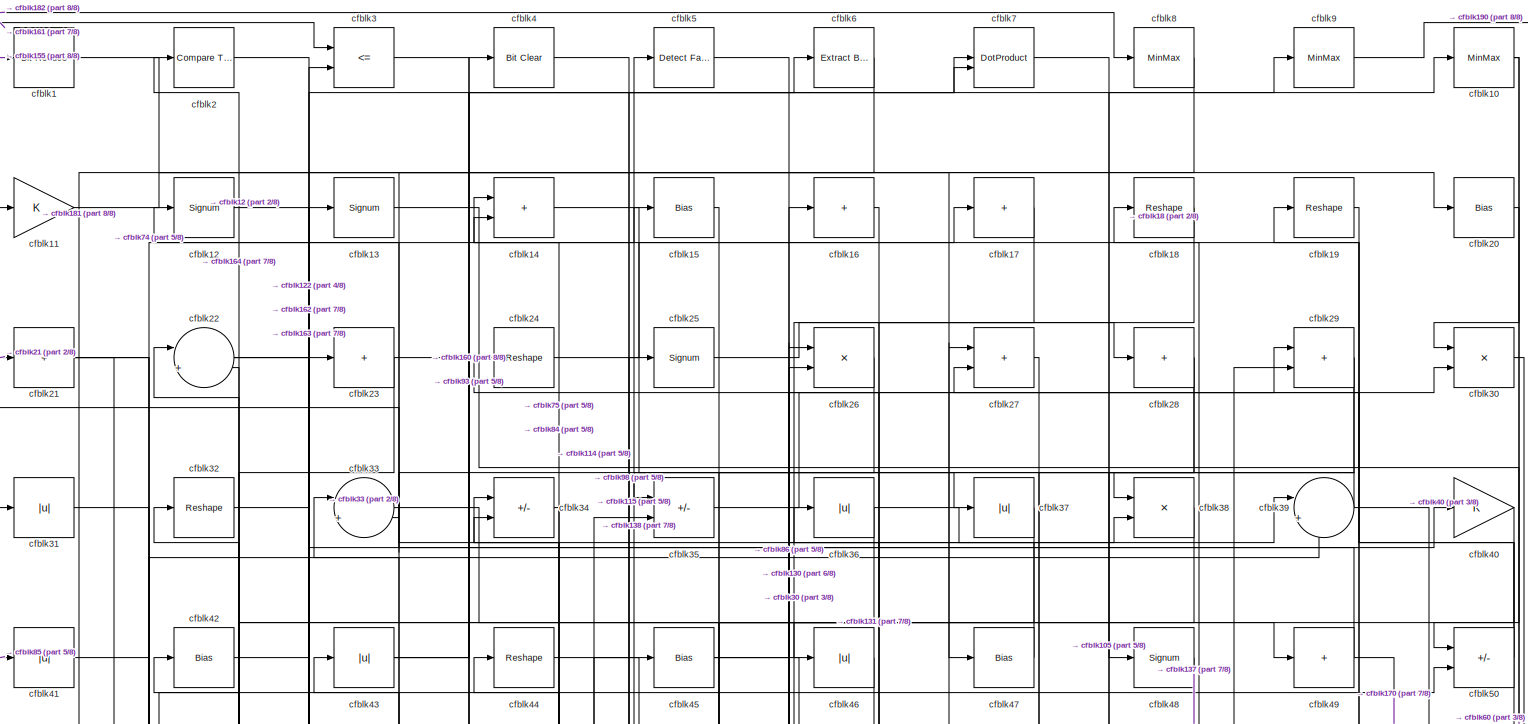
[diagram: root canvas - part 1/8, full width, top band]
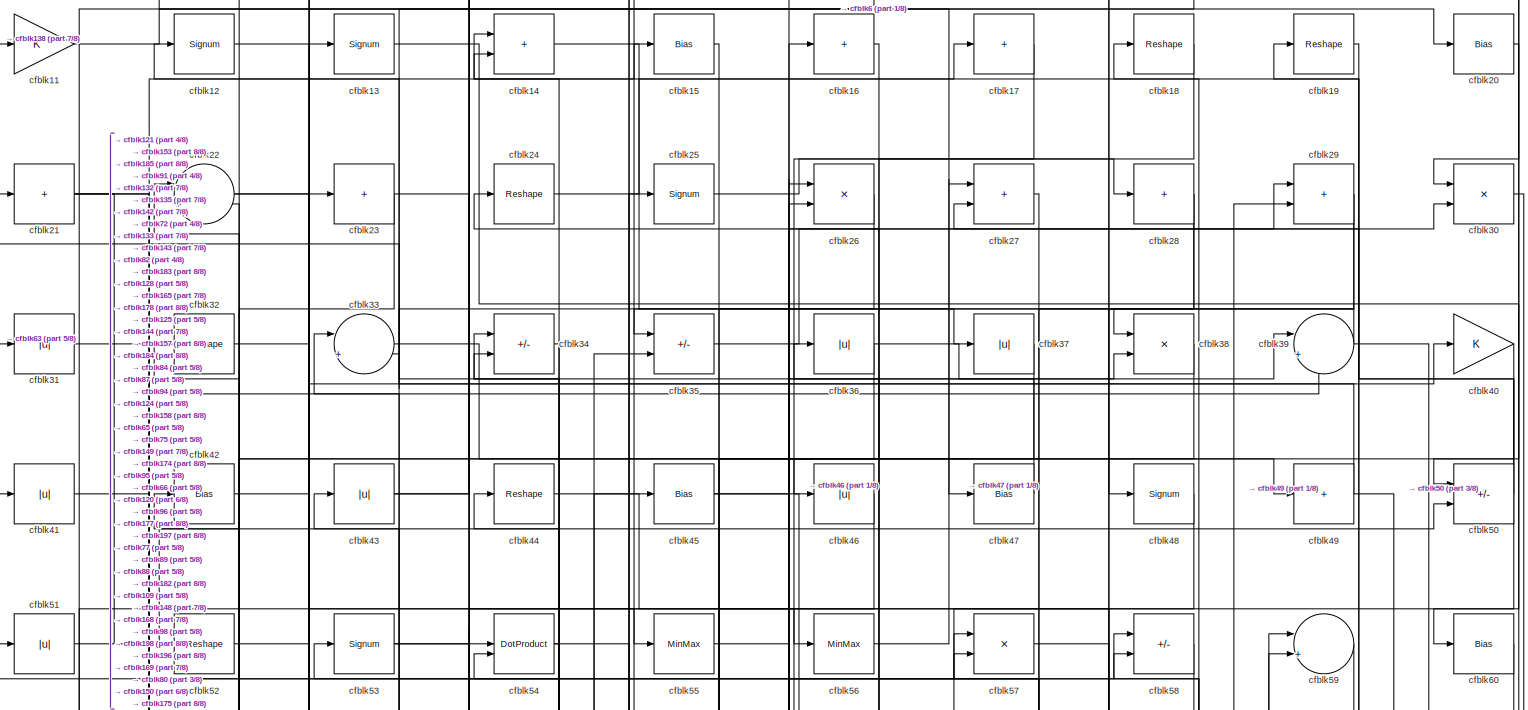
[diagram: root canvas - part 2/8, full width, top band]
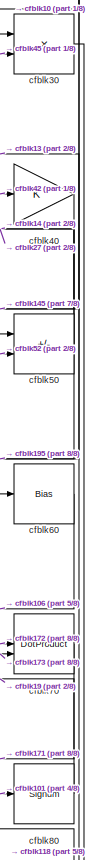
[diagram: root canvas - part 3/8, top right region]
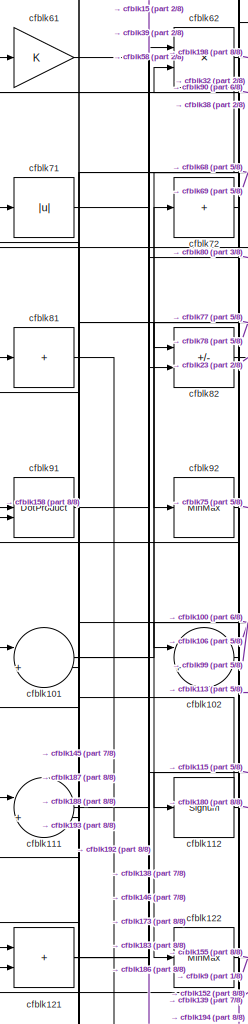
[diagram: root canvas - part 4/8, middle left region]
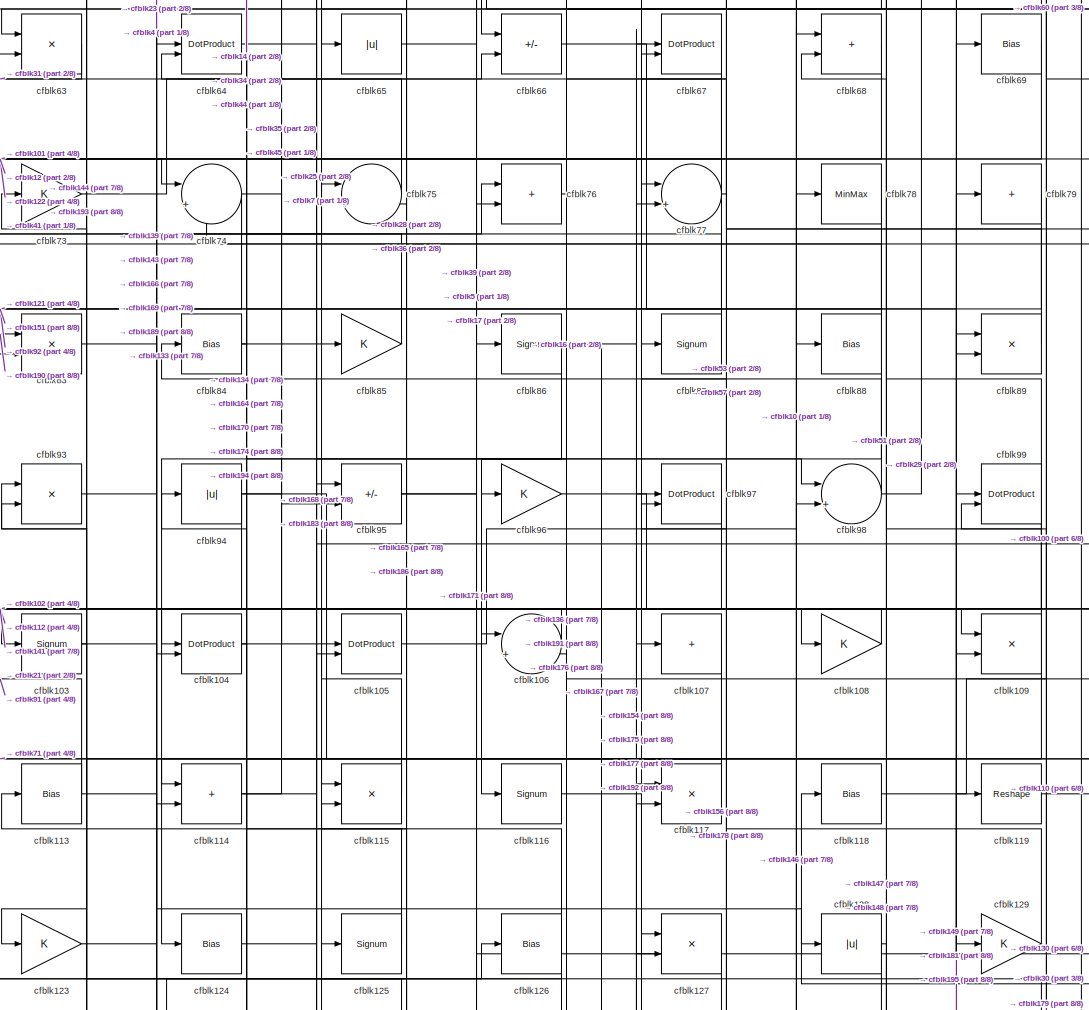
[diagram: root canvas - part 5/8, central region]
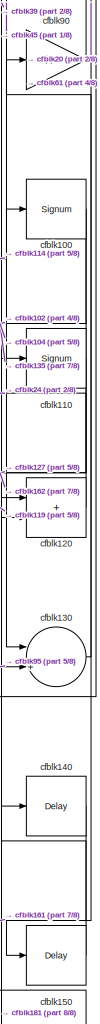
[diagram: root canvas - part 6/8, middle right region]
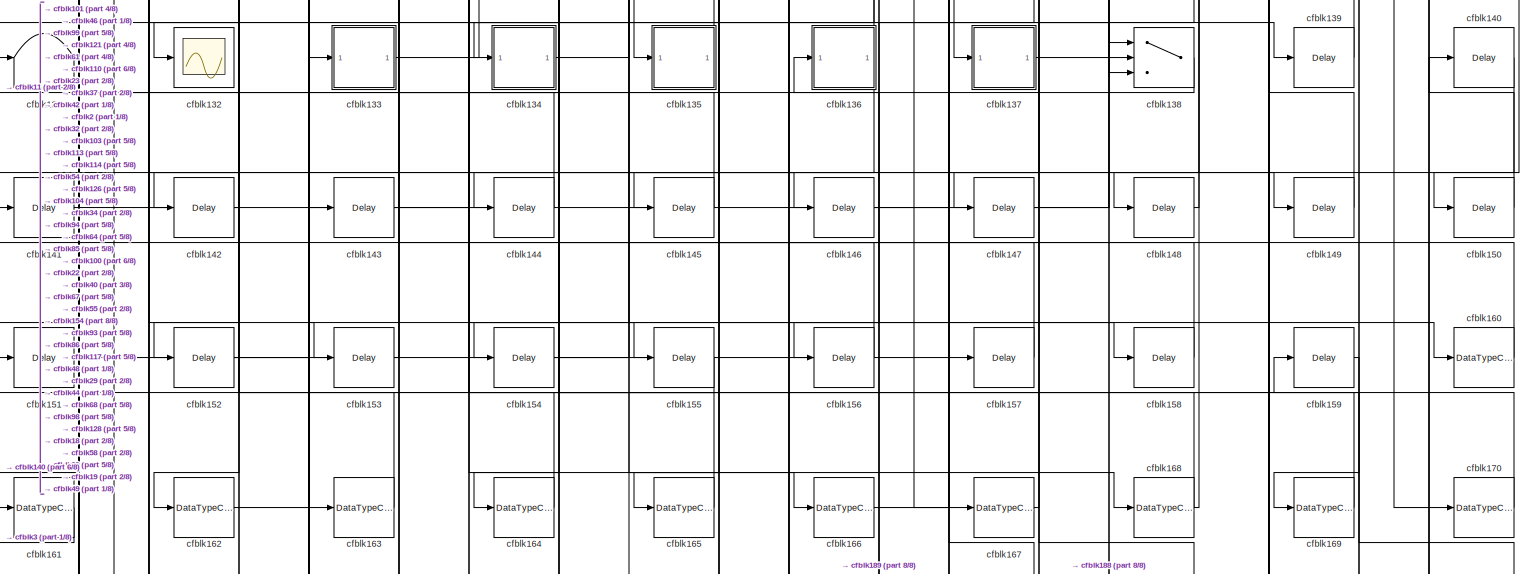
[diagram: root canvas - part 7/8, full width, bottom band]
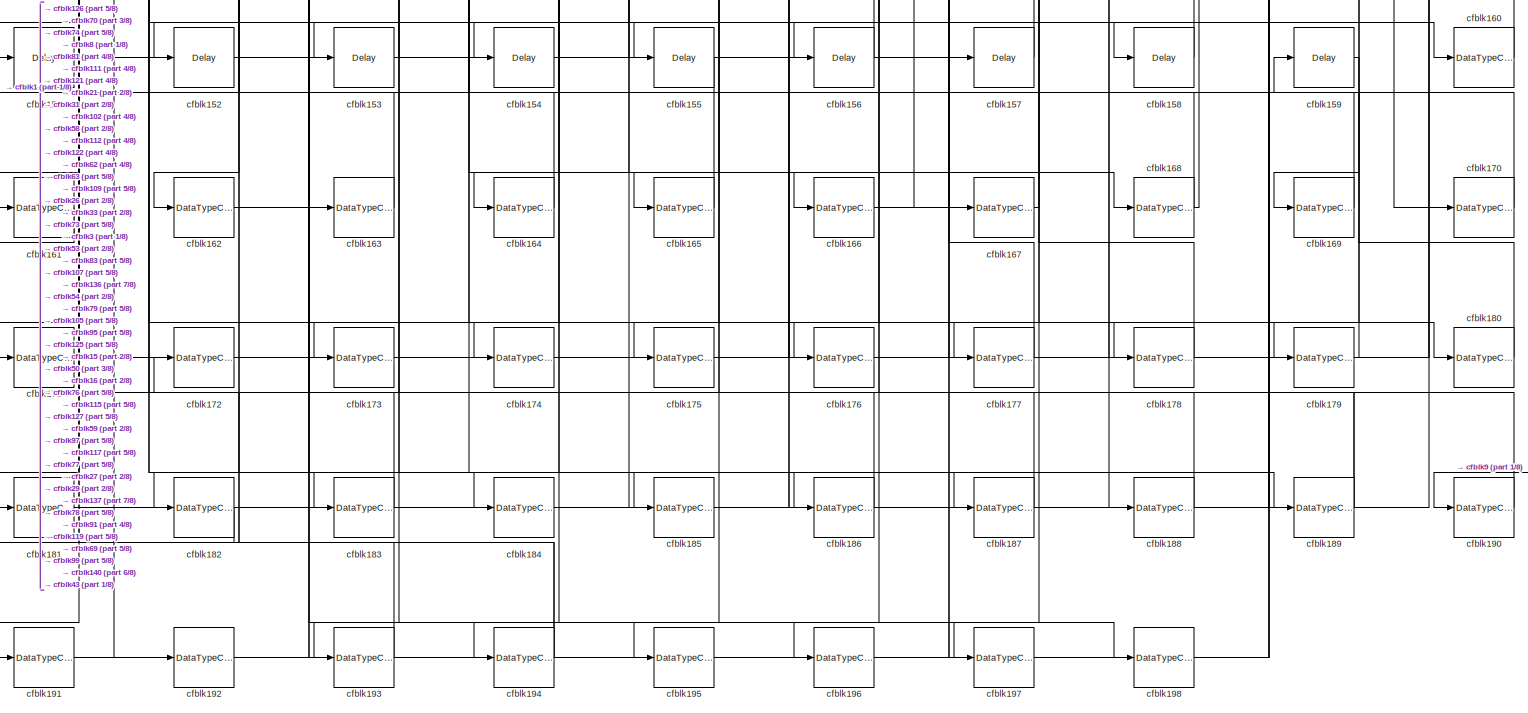
[diagram: root canvas - part 8/8, full width, bottom band]
MODEL slx_d9b208d0727f
KIND model
CONFIG AbsTol = auto
CONFIG EnableMultiTasking = off
CONFIG FixedStep = auto
CONFIG MaxStep = auto
CONFIG MinStep = auto
CONFIG RelTol = 1e-3
CONFIG SampleTimeConstraint = Unconstrained
CONFIG SolverName = VariableStepAuto
CONFIG StartTime = 0.0
CONFIG StopTime = 10.0
BLOCK [Reference] cfblk1  REF=hdlsllib/Logic and Bit
Operations/Bit Reduce
  SourceBlock = hdlsllib/Logic and Bit\nOperations/Bit Reduce
  SourceType = Bit Reduce
BLOCK [MinMax] cfblk10
BLOCK [Signum] cfblk100
BLOCK [Sum] cfblk101
  Inputs = |++
BLOCK [Sum] cfblk102
  Inputs = |++
BLOCK [Signum] cfblk103
BLOCK [DotProduct] cfblk104
  OutDataTypeStr = Inherit: Inherit via internal rule
BLOCK [DotProduct] cfblk105
  OutDataTypeStr = Inherit: Inherit via internal rule
BLOCK [Sum] cfblk106
  Inputs = |++
BLOCK [Sum] cfblk107
  IconShape = rectangular
  Inputs = +
BLOCK [Gain] cfblk108
BLOCK [Product] cfblk109
  Inputs = */
  RndMeth = Zero
  SaturateOnIntegerOverflow = on
BLOCK [Gain] cfblk11
BLOCK [Signum] cfblk110
BLOCK [Sum] cfblk111
  Inputs = |++
BLOCK [Signum] cfblk112
BLOCK [Bias] cfblk113
  Bias = 0.0
  SaturateOnIntegerOverflow = off
BLOCK [Sum] cfblk114
  IconShape = rectangular
BLOCK [Product] cfblk115
  Inputs = */
  RndMeth = Zero
  SaturateOnIntegerOverflow = on
BLOCK [Signum] cfblk116
BLOCK [Product] cfblk117
  Inputs = */
  RndMeth = Zero
  SaturateOnIntegerOverflow = on
BLOCK [Bias] cfblk118
  Bias = 0.0
  SaturateOnIntegerOverflow = off
BLOCK [Reshape] cfblk119
BLOCK [Signum] cfblk12
BLOCK [Sum] cfblk120
  IconShape = rectangular
BLOCK [Sum] cfblk121
  IconShape = rectangular
BLOCK [MinMax] cfblk122
BLOCK [Gain] cfblk123
BLOCK [Bias] cfblk124
  Bias = 0.0
  SaturateOnIntegerOverflow = off
BLOCK [Signum] cfblk125
BLOCK [Bias] cfblk126
  Bias = 0.0
  SaturateOnIntegerOverflow = off
BLOCK [Product] cfblk127
  Inputs = */
  RndMeth = Zero
  SaturateOnIntegerOverflow = on
BLOCK [Abs] cfblk128
  SaturateOnIntegerOverflow = off
BLOCK [Gain] cfblk129
BLOCK [Signum] cfblk13
BLOCK [Sum] cfblk130
  Inputs = |++
BLOCK [Terminator] cfblk131
BLOCK [Scope] cfblk132
  Floating = off
  NumInputPorts = 1
  ScopeSpecificationString = Simulink.scopes.TimeScopeBlockCfg('CurrentConfiguration', extmgr.ConfigurationSet(extmgr.Configuration('Core','General UI',true),extmgr.Configuration('Core','Source UI',true),extmgr.Configuration('Sources','WiredSimulink',true,'DataLoggingVariableName','ScopeData2','DataLoggingSaveFormat','Array','DataLoggingLimitDataPoints',true,'DataLoggingDecimation','1'),extmgr.Configuration('Visuals','Time Do...<+868ch>
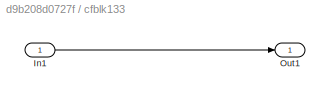
BLOCK [SubSystem] cfblk133
  LibrarySourceBlock = hdlsllib/Ports &\nSubsystems/Subsystem
BLOCK [Inport] cfblk133/In1
BLOCK [Outport] cfblk133/Out1
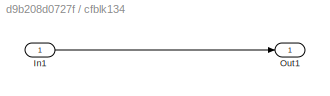
BLOCK [SubSystem] cfblk134
  LibrarySourceBlock = hdlsllib/Ports &\nSubsystems/Subsystem
BLOCK [Inport] cfblk134/In1
BLOCK [Outport] cfblk134/Out1
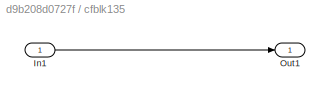
BLOCK [SubSystem] cfblk135
  LibrarySourceBlock = hdlsllib/Ports &\nSubsystems/Subsystem
BLOCK [Inport] cfblk135/In1
BLOCK [Outport] cfblk135/Out1
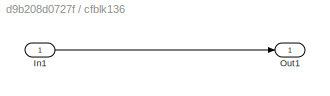
BLOCK [SubSystem] cfblk136
  LibrarySourceBlock = hdlsllib/Ports &\nSubsystems/Subsystem
BLOCK [Inport] cfblk136/In1
BLOCK [Outport] cfblk136/Out1
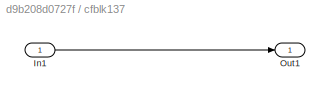
BLOCK [SubSystem] cfblk137
  LibrarySourceBlock = hdlsllib/Ports &\nSubsystems/Subsystem
BLOCK [Inport] cfblk137/In1
BLOCK [Outport] cfblk137/Out1
BLOCK [Switch] cfblk138
  InputSameDT = off
  SaturateOnIntegerOverflow = off
BLOCK [Delay] cfblk139
  InputPortMap = u0
  SampleTime = 1
BLOCK [Sum] cfblk14
  IconShape = rectangular
BLOCK [Delay] cfblk140
  InputPortMap = u0
  SampleTime = 1
BLOCK [Delay] cfblk141
  InputPortMap = u0
  SampleTime = 1
BLOCK [Delay] cfblk142
  InputPortMap = u0
  SampleTime = 1
BLOCK [Delay] cfblk143
  InputPortMap = u0
  SampleTime = 1
BLOCK [Delay] cfblk144
  InputPortMap = u0
  SampleTime = 1
BLOCK [Delay] cfblk145
  InputPortMap = u0
  SampleTime = 1
BLOCK [Delay] cfblk146
  InputPortMap = u0
  SampleTime = 1
BLOCK [Delay] cfblk147
  InputPortMap = u0
  SampleTime = 1
BLOCK [Delay] cfblk148
  InputPortMap = u0
  SampleTime = 1
BLOCK [Delay] cfblk149
  InputPortMap = u0
  SampleTime = 1
BLOCK [Bias] cfblk15
  Bias = 0.0
  SaturateOnIntegerOverflow = off
BLOCK [Delay] cfblk150
  InputPortMap = u0
  SampleTime = 1
BLOCK [Delay] cfblk151
  InputPortMap = u0
  SampleTime = 1
BLOCK [Delay] cfblk152
  InputPortMap = u0
  SampleTime = 1
BLOCK [Delay] cfblk153
  InputPortMap = u0
  SampleTime = 1
BLOCK [Delay] cfblk154
  InputPortMap = u0
  SampleTime = 1
BLOCK [Delay] cfblk155
  InputPortMap = u0
  SampleTime = 1
BLOCK [Delay] cfblk156
  InputPortMap = u0
  SampleTime = 1
BLOCK [Delay] cfblk157
  InputPortMap = u0
  SampleTime = 1
BLOCK [Delay] cfblk158
  InputPortMap = u0
  SampleTime = 1
BLOCK [Delay] cfblk159
  InputPortMap = u0
  SampleTime = 1
BLOCK [Sum] cfblk16
  IconShape = rectangular
  Inputs = +
BLOCK [DataTypeConversion] cfblk160
  OutDataTypeStr = uint8
  RndMeth = Floor
  SaturateOnIntegerOverflow = off
BLOCK [DataTypeConversion] cfblk161
  OutDataTypeStr = uint8
  RndMeth = Floor
  SaturateOnIntegerOverflow = off
BLOCK [DataTypeConversion] cfblk162
  OutDataTypeStr = uint8
  RndMeth = Floor
  SaturateOnIntegerOverflow = off
BLOCK [DataTypeConversion] cfblk163
  OutDataTypeStr = uint8
  RndMeth = Floor
  SaturateOnIntegerOverflow = off
BLOCK [DataTypeConversion] cfblk164
  OutDataTypeStr = uint8
  RndMeth = Floor
  SaturateOnIntegerOverflow = off
BLOCK [DataTypeConversion] cfblk165
  OutDataTypeStr = uint8
  RndMeth = Floor
  SaturateOnIntegerOverflow = off
BLOCK [DataTypeConversion] cfblk166
  OutDataTypeStr = uint8
  RndMeth = Floor
  SaturateOnIntegerOverflow = off
BLOCK [DataTypeConversion] cfblk167
  OutDataTypeStr = uint8
  RndMeth = Floor
  SaturateOnIntegerOverflow = off
BLOCK [DataTypeConversion] cfblk168
  RndMeth = Floor
  SaturateOnIntegerOverflow = off
BLOCK [DataTypeConversion] cfblk169
  OutDataTypeStr = uint8
  RndMeth = Floor
  SaturateOnIntegerOverflow = off
BLOCK [Sum] cfblk17
  IconShape = rectangular
  Inputs = +
BLOCK [DataTypeConversion] cfblk170
  OutDataTypeStr = uint8
  RndMeth = Floor
  SaturateOnIntegerOverflow = off
BLOCK [DataTypeConversion] cfblk171
  OutDataTypeStr = uint8
  RndMeth = Floor
  SaturateOnIntegerOverflow = off
BLOCK [DataTypeConversion] cfblk172
  OutDataTypeStr = uint8
  RndMeth = Floor
  SaturateOnIntegerOverflow = off
BLOCK [DataTypeConversion] cfblk173
  OutDataTypeStr = uint8
  RndMeth = Floor
  SaturateOnIntegerOverflow = off
BLOCK [DataTypeConversion] cfblk174
  RndMeth = Floor
  SaturateOnIntegerOverflow = off
BLOCK [DataTypeConversion] cfblk175
  OutDataTypeStr = uint8
  RndMeth = Floor
  SaturateOnIntegerOverflow = off
BLOCK [DataTypeConversion] cfblk176
  OutDataTypeStr = uint8
  RndMeth = Floor
  SaturateOnIntegerOverflow = off
BLOCK [DataTypeConversion] cfblk177
  OutDataTypeStr = uint8
  RndMeth = Floor
  SaturateOnIntegerOverflow = off
BLOCK [DataTypeConversion] cfblk178
  OutDataTypeStr = uint8
  RndMeth = Floor
  SaturateOnIntegerOverflow = off
BLOCK [DataTypeConversion] cfblk179
  OutDataTypeStr = uint8
  RndMeth = Floor
  SaturateOnIntegerOverflow = off
BLOCK [Reshape] cfblk18
BLOCK [DataTypeConversion] cfblk180
  OutDataTypeStr = uint8
  RndMeth = Floor
  SaturateOnIntegerOverflow = off
BLOCK [DataTypeConversion] cfblk181
  RndMeth = Floor
  SaturateOnIntegerOverflow = off
BLOCK [DataTypeConversion] cfblk182
  OutDataTypeStr = uint8
  RndMeth = Floor
  SaturateOnIntegerOverflow = off
BLOCK [DataTypeConversion] cfblk183
  RndMeth = Floor
  SaturateOnIntegerOverflow = off
BLOCK [DataTypeConversion] cfblk184
  OutDataTypeStr = uint8
  RndMeth = Floor
  SaturateOnIntegerOverflow = off
BLOCK [DataTypeConversion] cfblk185
  OutDataTypeStr = uint8
  RndMeth = Floor
  SaturateOnIntegerOverflow = off
BLOCK [DataTypeConversion] cfblk186
  RndMeth = Floor
  SaturateOnIntegerOverflow = off
BLOCK [DataTypeConversion] cfblk187
  OutDataTypeStr = uint8
  RndMeth = Floor
  SaturateOnIntegerOverflow = off
BLOCK [DataTypeConversion] cfblk188
  OutDataTypeStr = uint8
  RndMeth = Floor
  SaturateOnIntegerOverflow = off
BLOCK [DataTypeConversion] cfblk189
  RndMeth = Floor
  SaturateOnIntegerOverflow = off
BLOCK [Reshape] cfblk19
BLOCK [DataTypeConversion] cfblk190
  OutDataTypeStr = uint8
  RndMeth = Floor
  SaturateOnIntegerOverflow = off
BLOCK [DataTypeConversion] cfblk191
  OutDataTypeStr = uint8
  RndMeth = Floor
  SaturateOnIntegerOverflow = off
BLOCK [DataTypeConversion] cfblk192
  RndMeth = Floor
  SaturateOnIntegerOverflow = off
BLOCK [DataTypeConversion] cfblk193
  OutDataTypeStr = uint8
  RndMeth = Floor
  SaturateOnIntegerOverflow = off
BLOCK [DataTypeConversion] cfblk194
  RndMeth = Floor
  SaturateOnIntegerOverflow = off
BLOCK [DataTypeConversion] cfblk195
  OutDataTypeStr = uint8
  RndMeth = Floor
  SaturateOnIntegerOverflow = off
BLOCK [DataTypeConversion] cfblk196
  OutDataTypeStr = uint8
  RndMeth = Floor
  SaturateOnIntegerOverflow = off
BLOCK [DataTypeConversion] cfblk197
  OutDataTypeStr = uint8
  RndMeth = Floor
  SaturateOnIntegerOverflow = off
BLOCK [DataTypeConversion] cfblk198
  OutDataTypeStr = uint8
  RndMeth = Floor
  SaturateOnIntegerOverflow = off
BLOCK [Reference] cfblk2  REF=hdlsllib/Logic and Bit
Operations/Compare
To Constant
  SourceBlock = hdlsllib/Logic and Bit\nOperations/Compare\nTo Constant
  SourceType = Compare To Constant
BLOCK [Bias] cfblk20
  Bias = 0.0
  SaturateOnIntegerOverflow = off
BLOCK [Sum] cfblk21
  IconShape = rectangular
  Inputs = +
BLOCK [Sum] cfblk22
  Inputs = |++
BLOCK [Sum] cfblk23
  IconShape = rectangular
  Inputs = +
BLOCK [Reshape] cfblk24
BLOCK [Signum] cfblk25
BLOCK [Product] cfblk26
  Inputs = */
  RndMeth = Zero
  SaturateOnIntegerOverflow = on
BLOCK [Sum] cfblk27
  IconShape = rectangular
BLOCK [Sum] cfblk28
  IconShape = rectangular
  Inputs = +
BLOCK [Sum] cfblk29
  IconShape = rectangular
BLOCK [RelationalOperator] cfblk3
  InputSameDT = off
  Operator = <=
  OutDataTypeStr = boolean
BLOCK [Product] cfblk30
  Inputs = */
  RndMeth = Zero
  SaturateOnIntegerOverflow = on
BLOCK [Abs] cfblk31
  SaturateOnIntegerOverflow = off
BLOCK [Reshape] cfblk32
BLOCK [Sum] cfblk33
  Inputs = |++
BLOCK [Sum] cfblk34
  IconShape = rectangular
  Inputs = +-
BLOCK [Sum] cfblk35
  IconShape = rectangular
  Inputs = +-
BLOCK [Abs] cfblk36
  SaturateOnIntegerOverflow = off
BLOCK [Abs] cfblk37
  SaturateOnIntegerOverflow = off
BLOCK [Product] cfblk38
  Inputs = */
  RndMeth = Zero
  SaturateOnIntegerOverflow = on
BLOCK [Sum] cfblk39
  Inputs = |++
BLOCK [Reference] cfblk4  REF=simulink/Logic and Bit
Operations/Bit Clear
  LibrarySourceBlock = hdlsllib/Logic and Bit\nOperations/Bit Clear
  SourceBlock = simulink/Logic and Bit\nOperations/Bit Clear
  SourceType = Bit Clear
BLOCK [Gain] cfblk40
BLOCK [Abs] cfblk41
  SaturateOnIntegerOverflow = off
BLOCK [Bias] cfblk42
  Bias = 0.0
  SaturateOnIntegerOverflow = off
BLOCK [Abs] cfblk43
  SaturateOnIntegerOverflow = off
BLOCK [Reshape] cfblk44
BLOCK [Bias] cfblk45
  Bias = 0.0
  SaturateOnIntegerOverflow = off
BLOCK [Abs] cfblk46
  SaturateOnIntegerOverflow = off
BLOCK [Bias] cfblk47
  Bias = 0.0
  SaturateOnIntegerOverflow = off
BLOCK [Signum] cfblk48
BLOCK [Sum] cfblk49
  IconShape = rectangular
  Inputs = +
BLOCK [Reference] cfblk5  REF=hdlsllib/Logic and Bit
Operations/Detect Fall
Negative
  SourceBlock = hdlsllib/Logic and Bit\nOperations/Detect Fall\nNegative
  SourceType = Detect Fall Negative
BLOCK [Sum] cfblk50
  IconShape = rectangular
  Inputs = +-
BLOCK [Abs] cfblk51
  SaturateOnIntegerOverflow = off
BLOCK [Reshape] cfblk52
BLOCK [Signum] cfblk53
BLOCK [DotProduct] cfblk54
  OutDataTypeStr = Inherit: Inherit via internal rule
BLOCK [MinMax] cfblk55
BLOCK [MinMax] cfblk56
BLOCK [Product] cfblk57
  Inputs = */
  RndMeth = Zero
  SaturateOnIntegerOverflow = on
BLOCK [Sum] cfblk58
  IconShape = rectangular
  Inputs = +-
BLOCK [Sum] cfblk59
  Inputs = |++
BLOCK [Reference] cfblk6  REF=simulink/Logic and Bit
Operations/Extract Bits
  LibrarySourceBlock = hdlsllib/Logic and Bit\nOperations/Extract Bits
  SourceBlock = simulink/Logic and Bit\nOperations/Extract Bits
  SourceType = Extract Bits
BLOCK [Bias] cfblk60
  Bias = 0.0
  SaturateOnIntegerOverflow = off
BLOCK [Gain] cfblk61
BLOCK [Product] cfblk62
  Inputs = */
  RndMeth = Zero
  SaturateOnIntegerOverflow = on
BLOCK [Product] cfblk63
  Inputs = */
  RndMeth = Zero
  SaturateOnIntegerOverflow = on
BLOCK [DotProduct] cfblk64
  OutDataTypeStr = Inherit: Inherit via internal rule
BLOCK [Abs] cfblk65
  SaturateOnIntegerOverflow = off
BLOCK [Sum] cfblk66
  IconShape = rectangular
  Inputs = +-
BLOCK [DotProduct] cfblk67
  OutDataTypeStr = Inherit: Inherit via internal rule
BLOCK [Sum] cfblk68
  IconShape = rectangular
BLOCK [Bias] cfblk69
  Bias = 0.0
  SaturateOnIntegerOverflow = off
BLOCK [DotProduct] cfblk7
  OutDataTypeStr = Inherit: Inherit via internal rule
BLOCK [DotProduct] cfblk70
  OutDataTypeStr = Inherit: Inherit via internal rule
BLOCK [Abs] cfblk71
  SaturateOnIntegerOverflow = off
BLOCK [Sum] cfblk72
  IconShape = rectangular
  Inputs = +
BLOCK [Gain] cfblk73
BLOCK [Sum] cfblk74
  Inputs = |++
BLOCK [Sum] cfblk75
  Inputs = |++
BLOCK [Sum] cfblk76
  IconShape = rectangular
BLOCK [Sum] cfblk77
  Inputs = |++
BLOCK [MinMax] cfblk78
BLOCK [Sum] cfblk79
  IconShape = rectangular
  Inputs = +
BLOCK [MinMax] cfblk8
BLOCK [Signum] cfblk80
BLOCK [Sum] cfblk81
  IconShape = rectangular
  Inputs = +
BLOCK [Sum] cfblk82
  IconShape = rectangular
  Inputs = +-
BLOCK [Product] cfblk83
  Inputs = */
  RndMeth = Zero
  SaturateOnIntegerOverflow = on
BLOCK [Bias] cfblk84
  Bias = 0.0
  SaturateOnIntegerOverflow = off
BLOCK [Gain] cfblk85
BLOCK [Signum] cfblk86
BLOCK [Signum] cfblk87
BLOCK [Bias] cfblk88
  Bias = 0.0
  SaturateOnIntegerOverflow = off
BLOCK [Product] cfblk89
  Inputs = */
  RndMeth = Zero
  SaturateOnIntegerOverflow = on
BLOCK [MinMax] cfblk9
BLOCK [Gain] cfblk90
BLOCK [DotProduct] cfblk91
  OutDataTypeStr = Inherit: Inherit via internal rule
BLOCK [MinMax] cfblk92
BLOCK [Product] cfblk93
  Inputs = */
  RndMeth = Zero
  SaturateOnIntegerOverflow = on
BLOCK [Abs] cfblk94
  SaturateOnIntegerOverflow = off
BLOCK [Sum] cfblk95
  IconShape = rectangular
  Inputs = +-
BLOCK [Gain] cfblk96
BLOCK [DotProduct] cfblk97
  OutDataTypeStr = Inherit: Inherit via internal rule
BLOCK [Sum] cfblk98
  Inputs = |++
BLOCK [DotProduct] cfblk99
  OutDataTypeStr = Inherit: Inherit via internal rule
NET cfblk100:1 -> cfblk102:2, cfblk135:1
NET cfblk101:1 -> cfblk72:1, cfblk80:1
LINE cfblk102:1 -> cfblk152:1
NET cfblk103:1 -> cfblk123:1, cfblk166:1
NET cfblk104:1 -> cfblk164:1, cfblk95:2
LINE cfblk105:1 -> cfblk10:1
LINE cfblk106:1 -> cfblk102:1
LINE cfblk107:1 -> cfblk174:1
LINE cfblk108:1 -> cfblk103:1
NET cfblk109:1 -> cfblk193:1, cfblk51:1
NET cfblk10:1 -> cfblk30:1, cfblk60:1
NET cfblk110:1 -> cfblk104:1, cfblk127:2, cfblk162:1
LINE cfblk111:1 -> cfblk186:1
NET cfblk112:1 -> cfblk180:1, cfblk71:1
NET cfblk113:1 -> cfblk139:1, cfblk91:2
NET cfblk114:1 -> cfblk100:1, cfblk45:1
LINE cfblk115:1 -> cfblk5:1
LINE cfblk116:1 -> cfblk127:1
LINE cfblk117:1 -> cfblk114:1
LINE cfblk118:1 -> cfblk63:1
LINE cfblk119:1 -> cfblk110:1
LINE cfblk11:1 -> cfblk20:1
LINE cfblk120:1 -> cfblk24:1
NET cfblk121:1 -> cfblk138:2, cfblk15:1, cfblk173:1, cfblk39:2
NET cfblk122:1 -> cfblk155:1, cfblk9:1
LINE cfblk123:1 -> cfblk76:1
LINE cfblk124:1 -> cfblk25:1
LINE cfblk125:1 -> cfblk34:1
NET cfblk126:1 -> cfblk113:1, cfblk191:1
LINE cfblk127:1 -> cfblk156:1
NET cfblk128:1 -> cfblk147:1, cfblk148:1
LINE cfblk129:1 -> cfblk87:1
LINE cfblk12:1 -> cfblk77:1
LINE cfblk130:1 -> cfblk90:1
LINE cfblk133/In1:1 -> cfblk133/Out1:1
LINE cfblk133:1 -> cfblk126:1
LINE cfblk134/In1:1 -> cfblk134/Out1:1
LINE cfblk134:1 -> cfblk85:1
LINE cfblk135/In1:1 -> cfblk135/Out1:1
LINE cfblk135:1 -> cfblk22:1
LINE cfblk136/In1:1 -> cfblk136/Out1:1
NET cfblk136:1 -> cfblk154:1, cfblk93:1
LINE cfblk137/In1:1 -> cfblk137/Out1:1
LINE cfblk137:1 -> cfblk188:1
LINE cfblk138:1 -> cfblk11:1
LINE cfblk139:1 -> cfblk121:2
LINE cfblk13:1 -> cfblk50:1
LINE cfblk140:1 -> cfblk161:1
LINE cfblk141:1 -> cfblk117:2
LINE cfblk142:1 -> cfblk22:2
LINE cfblk143:1 -> cfblk114:2
LINE cfblk144:1 -> cfblk93:2
LINE cfblk145:1 -> cfblk101:1
LINE cfblk146:1 -> cfblk68:1
LINE cfblk147:1 -> cfblk98:2
LINE cfblk148:1 -> cfblk58:2
LINE cfblk149:1 -> cfblk89:1
LINE cfblk14:1 -> cfblk37:1
LINE cfblk150:1 -> cfblk120:1
LINE cfblk151:1 -> cfblk95:1
LINE cfblk152:1 -> cfblk187:1
LINE cfblk153:1 -> cfblk33:1
LINE cfblk154:1 -> cfblk77:2
LINE cfblk155:1 -> cfblk1:1
LINE cfblk156:1 -> cfblk115:2
LINE cfblk157:1 -> cfblk54:2
LINE cfblk158:1 -> cfblk91:1
LINE cfblk159:1 -> cfblk179:1
LINE cfblk15:1 -> cfblk175:1
LINE cfblk160:1 -> cfblk43:1
LINE cfblk161:1 -> cfblk3:1
LINE cfblk162:1 -> cfblk3:2
LINE cfblk163:1 -> cfblk42:1
LINE cfblk164:1 -> cfblk2:1
LINE cfblk165:1 -> cfblk54:1
LINE cfblk166:1 -> cfblk67:1
LINE cfblk167:1 -> cfblk67:2
NET cfblk168:1 -> cfblk18:1, cfblk94:1
LINE cfblk169:1 -> cfblk64:1
LINE cfblk16:1 -> cfblk96:1
LINE cfblk170:1 -> cfblk64:2
LINE cfblk171:1 -> cfblk76:2
LINE cfblk172:1 -> cfblk70:1
LINE cfblk173:1 -> cfblk70:2
NET cfblk174:1 -> cfblk119:1, cfblk16:1
LINE cfblk175:1 -> cfblk107:1
LINE cfblk176:1 -> cfblk78:1
LINE cfblk177:1 -> cfblk97:1
LINE cfblk178:1 -> cfblk97:2
LINE cfblk179:1 -> cfblk99:2
LINE cfblk17:1 -> cfblk66:1
LINE cfblk180:1 -> cfblk159:1
NET cfblk181:1 -> cfblk140:1, cfblk99:1
LINE cfblk182:1 -> cfblk8:1
NET cfblk183:1 -> cfblk105:2, cfblk62:1
LINE cfblk184:1 -> cfblk26:1
LINE cfblk185:1 -> cfblk26:2
NET cfblk186:1 -> cfblk125:1, cfblk69:1
LINE cfblk187:1 -> cfblk111:1
LINE cfblk188:1 -> cfblk111:2
NET cfblk189:1 -> cfblk136:1, cfblk73:1
LINE cfblk18:1 -> cfblk46:1
LINE cfblk190:1 -> cfblk83:1
LINE cfblk191:1 -> cfblk83:2
NET cfblk192:1 -> cfblk117:1, cfblk63:2
LINE cfblk193:1 -> cfblk81:1
NET cfblk194:1 -> cfblk172:1, cfblk62:2
LINE cfblk195:1 -> cfblk79:1
LINE cfblk196:1 -> cfblk157:1
LINE cfblk197:1 -> cfblk59:1
LINE cfblk198:1 -> cfblk59:2
LINE cfblk19:1 -> cfblk169:1
LINE cfblk1:1 -> cfblk47:1
LINE cfblk20:1 -> cfblk150:1
NET cfblk21:1 -> cfblk109:2, cfblk185:1, cfblk52:1
NET cfblk22:1 -> cfblk133:1, cfblk56:1
NET cfblk23:1 -> cfblk128:1, cfblk132:1
LINE cfblk24:1 -> cfblk17:1
LINE cfblk25:1 -> cfblk28:1
LINE cfblk26:1 -> cfblk183:1
LINE cfblk27:1 -> cfblk197:1
NET cfblk28:1 -> cfblk38:1, cfblk65:1
NET cfblk29:1 -> cfblk138:3, cfblk177:1
LINE cfblk2:1 -> cfblk163:1
LINE cfblk30:1 -> cfblk118:1
LINE cfblk31:1 -> cfblk153:1
LINE cfblk32:1 -> cfblk143:1
LINE cfblk33:1 -> cfblk49:1
LINE cfblk34:1 -> cfblk144:1
LINE cfblk35:1 -> cfblk29:1
NET cfblk36:1 -> cfblk38:2, cfblk75:2
LINE cfblk37:1 -> cfblk142:1
LINE cfblk38:1 -> cfblk82:1
NET cfblk39:1 -> cfblk120:2, cfblk35:1
LINE cfblk3:1 -> cfblk160:1
LINE cfblk40:1 -> cfblk145:1
LINE cfblk41:1 -> cfblk74:1
LINE cfblk42:1 -> cfblk40:1
NET cfblk43:1 -> cfblk6:1, cfblk7:1
LINE cfblk44:1 -> cfblk138:1
NET cfblk45:1 -> cfblk130:1, cfblk30:2
LINE cfblk46:1 -> cfblk131:1
LINE cfblk47:1 -> cfblk12:1
LINE cfblk48:1 -> cfblk137:1
NET cfblk49:1 -> cfblk170:1, cfblk21:1
LINE cfblk4:1 -> cfblk98:1
NET cfblk50:1 -> cfblk14:2, cfblk195:1, cfblk27:2
LINE cfblk51:1 -> cfblk13:1
LINE cfblk52:1 -> cfblk50:2
NET cfblk53:1 -> cfblk178:1, cfblk55:1
NET cfblk54:1 -> cfblk158:1, cfblk184:1
LINE cfblk55:1 -> cfblk149:1
LINE cfblk56:1 -> cfblk27:1
LINE cfblk57:1 -> cfblk88:1
LINE cfblk58:1 -> cfblk182:1
LINE cfblk59:1 -> cfblk196:1
LINE cfblk5:1 -> cfblk86:1
LINE cfblk60:1 -> cfblk106:1
LINE cfblk61:1 -> cfblk146:1
NET cfblk62:1 -> cfblk198:1, cfblk82:2
LINE cfblk63:1 -> cfblk31:1
LINE cfblk64:1 -> cfblk168:1
LINE cfblk65:1 -> cfblk39:1
LINE cfblk66:1 -> cfblk89:2
LINE cfblk67:1 -> cfblk165:1
LINE cfblk68:1 -> cfblk122:1
LINE cfblk69:1 -> cfblk101:2
LINE cfblk6:1 -> cfblk33:2
LINE cfblk70:1 -> cfblk171:1
LINE cfblk71:1 -> cfblk115:1
LINE cfblk72:1 -> cfblk32:1
LINE cfblk73:1 -> cfblk66:2
NET cfblk74:1 -> cfblk105:1, cfblk151:1
LINE cfblk75:1 -> cfblk44:1
LINE cfblk76:1 -> cfblk106:2
NET cfblk77:1 -> cfblk121:1, cfblk36:1, cfblk57:2
LINE cfblk78:1 -> cfblk92:1
LINE cfblk79:1 -> cfblk194:1
LINE cfblk7:1 -> cfblk48:1
LINE cfblk80:1 -> cfblk19:1
LINE cfblk81:1 -> cfblk192:1
LINE cfblk82:1 -> cfblk23:1
LINE cfblk83:1 -> cfblk189:1
NET cfblk84:1 -> cfblk14:1, cfblk7:2
LINE cfblk85:1 -> cfblk41:1
NET cfblk86:1 -> cfblk108:1, cfblk116:1, cfblk134:1, cfblk167:1
LINE cfblk87:1 -> cfblk34:2
NET cfblk88:1 -> cfblk124:1, cfblk74:2
LINE cfblk89:1 -> cfblk53:1
LINE cfblk8:1 -> cfblk181:1
LINE cfblk90:1 -> cfblk61:1
LINE cfblk91:1 -> cfblk58:1
LINE cfblk92:1 -> cfblk75:1
LINE cfblk93:1 -> cfblk4:1
NET cfblk94:1 -> cfblk104:2, cfblk129:1, cfblk35:2
NET cfblk95:1 -> cfblk130:2, cfblk57:1
LINE cfblk96:1 -> cfblk109:1
LINE cfblk97:1 -> cfblk176:1
NET cfblk98:1 -> cfblk29:2, cfblk84:1
NET cfblk99:1 -> cfblk112:1, cfblk141:1, cfblk68:2
LINE cfblk9:1 -> cfblk190:1
note: NET lines group one-source signal fan-out (src -> all destinations, sorted); 1:1 wires keep LINE
